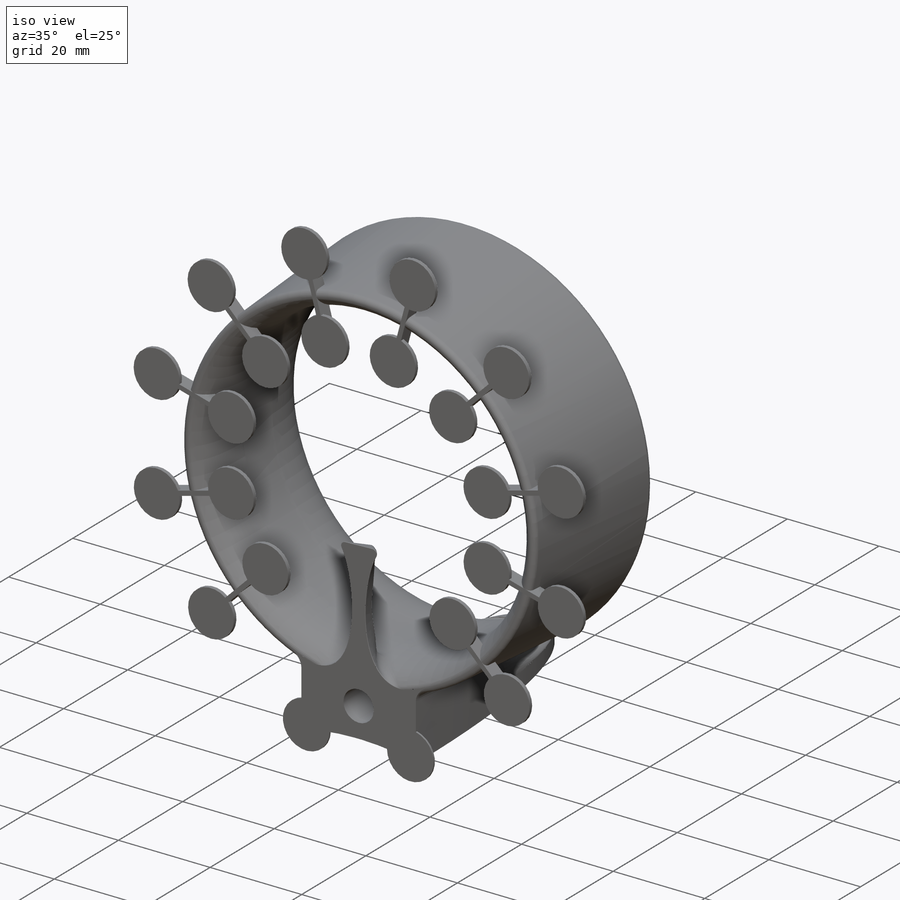
[diagram: iso view]
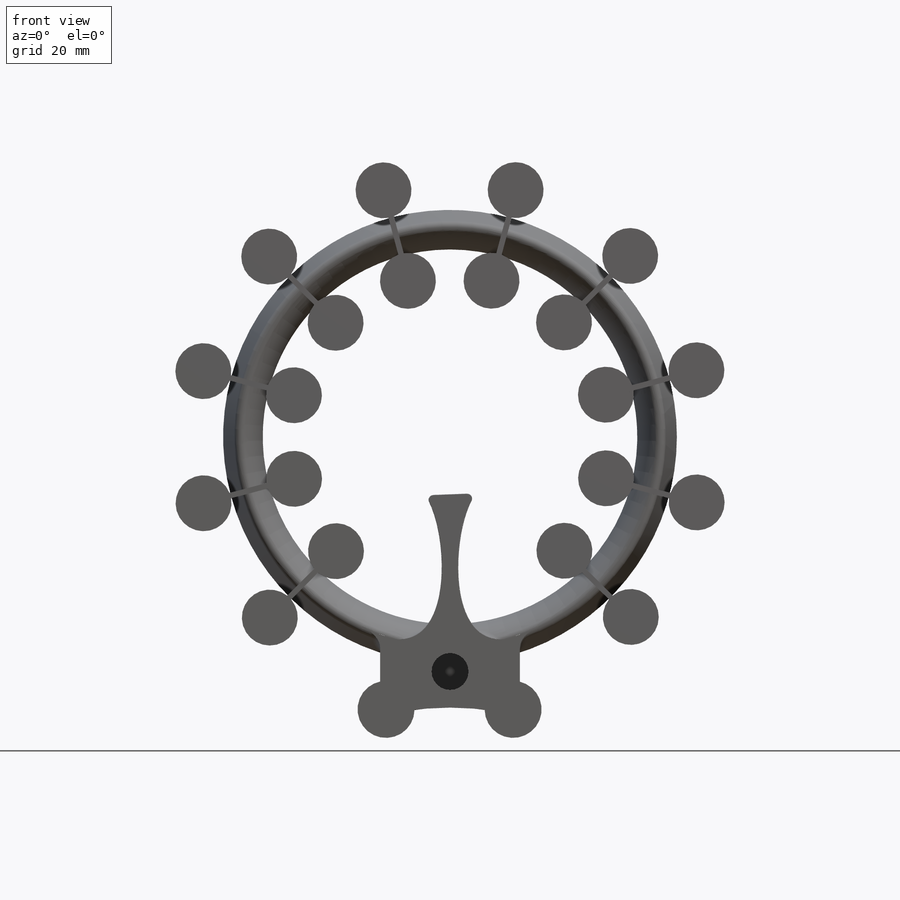
[diagram: front view]
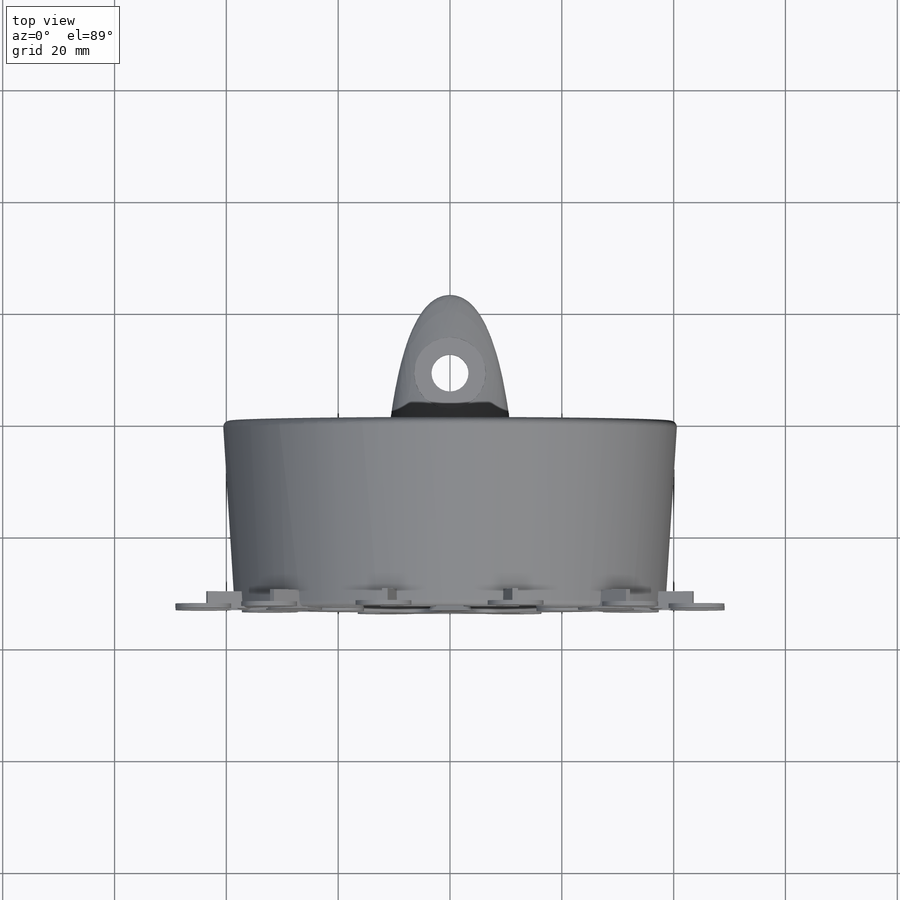
[diagram: top view]
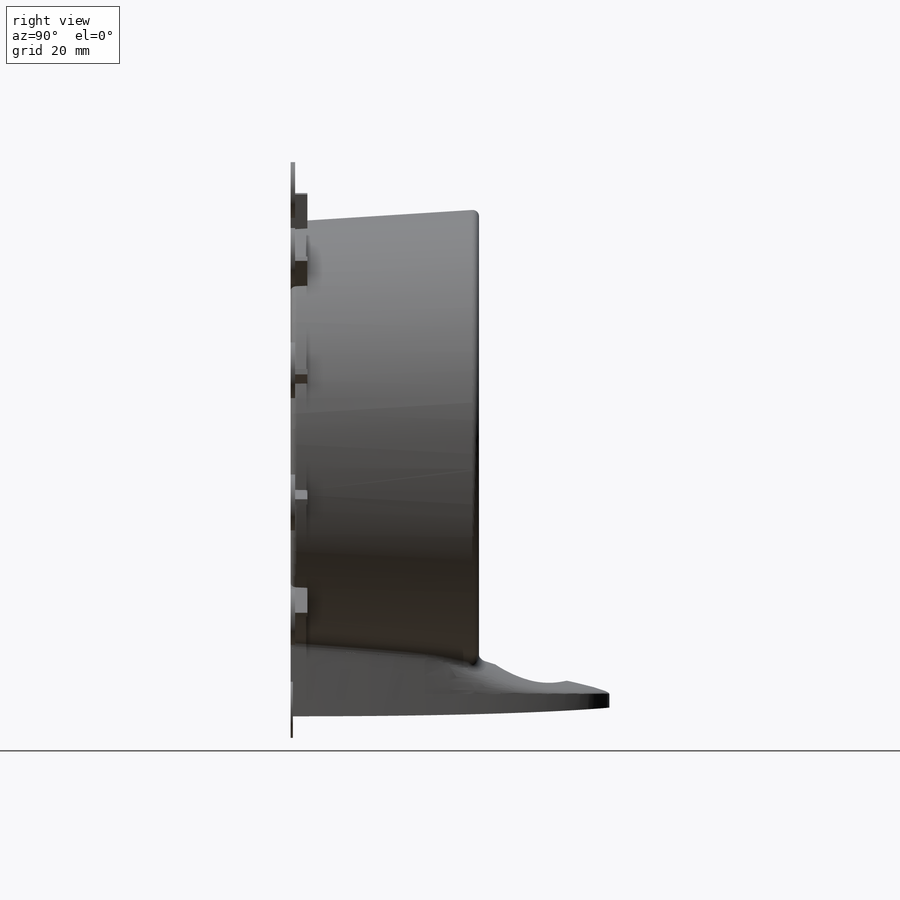
[diagram: right view]
SOLIDWORKS PART (.sldprt)
format: sldprt  version: not decoded by parser v0  size: 2,655,744 bytes
history: native  units: mm
features: sketch x17, cut_extrude x7, fillet x7, extrude x4, plane x2, material x1, revolve x1 (+13 scaffold rows collapsed)
feature tree (52):
  scaffold x13  (default folders/planes/origin — collapsed)
  material  "Material <not specified>"
  sketch  "Sketch1"  dims[c1.D1=67.0mm c1.D2=33.5mm c1.D3=~18.113631mm c2.D3=~3.616667deg c2.D4=12.77mm c2.D5=21.95mm]
  revolve  "Marin37"  Angle=360deg
  sketch  "Sketch3"  dims[c1.D1=25.0mm c1.D2=20.0mm c1.D3=18.0mm c1.D4=28.0mm c2.D3=57.0mm]
  extrude  "Boss-Extrude1"  Depth=4mm
  sketch  "Sketch4"  dims[D2=24.0mm D1=0.0mm]
  extrude  "Boss-Extrude2"  Depth=6mm
  plane  "Plane4"
  sketch  "Sketch7"
  sketch  "Sketch8"  dims[D1=1.5mm D2=1.5mm]
  sketch  "Sketch10"  dims[D1=12.8mm D2=43.0mm]
  cut_extrude  "Cut-Extrude1"  Depth=44mm
  sketch  "Sketch11"  dims[D1=6.604mm]
  cut_extrude  "Cut-Extrude2"  [1 undecoded]
  sketch  "Sketch12"  dims[D2=101.6mm D1=~99.238095mm]
  cut_extrude  "Cut-Extrude3"  [1 undecoded]
  sketch  "Sketch13"  dims[c1.D1=11.7mm c1.D3=6.604mm c2.D1=~9.031567mm c2.D2=42.0mm]
  cut_extrude  "Cut-Extrude4"  Depth=6.4mm
  cut_extrude  "Cut-Extrude5"  [1 undecoded]
  sketch  "Sketch13<3>"  dims[D1=25.0mm]
  fillet  "Fillet1"  Radius=2mm
  fillet  "Fillet2"  Radius=0.5mm
  plane  "Plane6"  Offset=29mm
  sketch  "Sketch17"  dims[D6=2.5mm D1=0.5mm D2=12.0mm D3=3.0mm D4=4.0mm D5=40.0mm]
  sketch  "Sketch18"  dims[c1.D1=26.0mm c1.D2=14.0mm c2.D1=0.0mm]
  cut_extrude  "Cut-Extrude6"  [1 undecoded]
  sketch  "Sketch13<4>"  dims[D1=10.0mm]
  fillet  "Fillet6"  Radius=1mm
  fillet  "Fillet7"  Radius=0.08mm
  fillet  "Fillet9"  Radius=0.8mm
  fillet  "Fillet10"  Radius=0.8mm
  fillet  "Fillet8"  Radius=2mm
  sketch  "Sketch19"  dims[D2=1.5mm D1=0.0mm]
  cut_extrude  "Cut-Extrude7"  Depth=9mm
  sketch  "Sketch20"  dims[c1.D2=29.0mm c1.D3=16.0mm c1.D1=12.0 c2.D1=3.0mm c2.D5=1.0mm c2.D6=10.0mm c2.D7=5.0mm]
  sketch  "Sketch21"  dims[D1=10.0mm D2=12.0]
  extrude  "support pucks"  Depth=0.8mm
  sketch  "Sketch22"
  extrude  "base corner pucks"  Depth=0.4mm
decode coverage: 30 of 36 modeling features carry decoded parameters
note: ~ marks probable driven/reference dimensions
note: 4 parameter values undecoded
summary: no parameter record found for 4 features
note: suppression state not decoded; provenance and decode notes live in map.json
